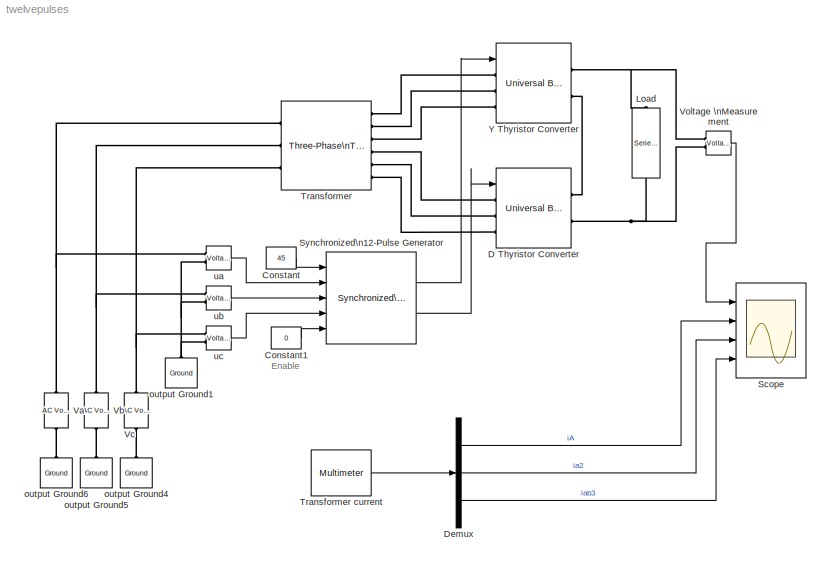
MODEL twelvepulses
KIND model
BLOCK [Reference]  Synchronized\n12-Pulse Generator  REF=powerlib_extras/Control \nBlocks/ Synchronized\n12-Pulse Generator
  Double_Pulse = off
  Ports = [5, 2]
  ShowPortLabels = on
  SourceBlock = powerlib_extras/Control \nBlocks/ Synchronized\n12-Pulse Generator
  SourceType = Synchronized 12-pulse generator
  freq = 50
  pwidth = 20
BLOCK [Constant] Constant
  Value = 45
BLOCK [Constant] Constant1
  Value = 0
BLOCK [Reference] D Thyristor Converter  REF=powerlib/Power\nElectronics/Universal Bridge
  Arms = 3
  AttributesFormatString = \\n
  Device = Thyristors
  ForwardVoltage = 0
  ForwardVoltages = [  0.8  0.8  ]
  GTOparameters = [ 10e-6 , 20e-6 ]
  IGBTparameters = [ 1e-6 , 2e-6 ]
  Lon = 0
  Measurements = None
  Ports = [1, 0, 0, 0, 0, 3, 2]
  Ron = 1e-3
  ShowPortLabels = on
  SnubberCapacitance = inf
  SnubberResistance = 2000
  SourceBlock = powerlib/Power\nElectronics/Universal Bridge
  SourceType = Universal Bridge
BLOCK [Demux] Demux
  Outputs = 3
  Ports = [1, 3]
BLOCK [Reference] Load  REF=powerlib/Elements/Series RLC Branch
  Capacitance = inf
  Inductance = 0.1
  LConnTagsString = __new0
  LeftPortType = p1
  Measurements = None
  PhysicalDomain = powersysdomain
  Ports = [0, 0, 0, 0, 0, 1, 1]
  RConnTagsString = __new0
  Resistance = 10
  RightPortType = p1
  SourceBlock = powerlib/Elements/Series RLC Branch
  SourceType = Series RLC Branch
  SubClassName = unknown
BLOCK [Scope] Scope
  DataFormat = StructureWithTime
  Decimation = 5
  NumInputPorts = 4
  Ports = [4]
  SampleInput = on
  SampleTime = 1e-4
  TimeRange = 0.05
  YMax = 400~60~60~60
  YMin = -400~-60~-60~-60
BLOCK [Reference] Transformer  REF=powerlib/Elements/Three-Phase\nTransformer\n(Three Windings)
  AttributesFormatString = \\n
  DataFile = 'basic_model'
  Hysteresis = off
  InitialFluxes = [0.8 -0.8 0.7]
  Lm = 500
  Measurements = Winding currents
  NominalPower = [ 1200e6 , 50 ]
  Ports = [0, 0, 0, 0, 0, 3, 6]
  Rm = 500
  Saturation = [0 0; 1 1.2; 2 1.1]
  SetInitialFlux = off
  SetSaturation = off
  ShowPortLabels = on
  SourceBlock = powerlib/Elements/Three-Phase\nTransformer\n(Three Windings)
  SourceType = Three-Phase Transformer (Three Windings)
  TransfoNumber = 0
  Winding1 = [ 200e3 0  0 ]
  Winding1Connection = Yg
  Winding2 = [ 200e3 0 0]
  Winding2Connection = Y
  Winding3 = [ 200e3 0.001 0]
  Winding3Connection = Delta (D1)
BLOCK [Reference] Transformer current   REF=powerlib/Measurements/Multimeter
  AttributesFormatString = \\n
  AxesSetting = [0,0.1,-100,100]
  Display = 0
  Gain = [1 -1 -1]
  L = 9
  OutputType = Magnitude
  PSBOutputType = 1
  PSBequivalent = 0
  PhasorSimulation = off
  Ports = [0, 1]
  SavedBlockNames = -11
  ShowPortLabels = on
  SourceBlock = powerlib/Measurements/Multimeter
  SourceType = MultimeterPSB
  Tag = PoWeRsYsTeMmEaSuReMeNt
  sel = [1 4 7]
  yselected = {'Iag_w1: Transformer','Ian_w2: Transformer','Iab_w3: Transformer'};
BLOCK [Reference] Va  REF=powerlib/Electrical\nSources/AC Voltage Source
  Amplitude = 100
  AttributesFormatString = \\n
  Description = source block
  Frequency = 50
  Measurements = None
  Phase = 0
  Ports = [0, 0, 0, 0, 0, 1, 1]
  SampleTime = 0
  ShowPortLabels = on
  SourceBlock = powerlib/Electrical\nSources/AC Voltage Source
  SourceType = AC Voltage Source
BLOCK [Reference] Vb  REF=powerlib/Electrical\nSources/AC Voltage Source
  Amplitude = 100
  AttributesFormatString = \\n
  Description = source block
  Frequency = 50
  Measurements = None
  Phase = -120
  Ports = [0, 0, 0, 0, 0, 1, 1]
  SampleTime = 0
  ShowPortLabels = on
  SourceBlock = powerlib/Electrical\nSources/AC Voltage Source
  SourceType = AC Voltage Source
BLOCK [Reference] Vc  REF=powerlib/Electrical\nSources/AC Voltage Source
  Amplitude = 100
  AttributesFormatString = \\n
  Description = source block
  Frequency = 50
  Measurements = None
  Phase = 120
  Ports = [0, 0, 0, 0, 0, 1, 1]
  SampleTime = 0
  ShowPortLabels = on
  SourceBlock = powerlib/Electrical\nSources/AC Voltage Source
  SourceType = AC Voltage Source
BLOCK [Reference] Voltage \nMeasurement  REF=powerlib/Measurements/Voltage Measurement
  OutputType = Complex
  PSBequivalent = 0
  PhasorSimulation = off
  Ports = [0, 1, 0, 0, 0, 2]
  ShowPortLabels = on
  SourceBlock = powerlib/Measurements/Voltage Measurement
  SourceType = Voltage Measurement
BLOCK [Reference] Y Thyristor Converter  REF=powerlib/Power\nElectronics/Universal Bridge
  Arms = 3
  AttributesFormatString = \\n
  Device = Thyristors
  ForwardVoltage = 0
  ForwardVoltages = [  0.8  0.8  ]
  GTOparameters = [ 10e-6 , 20e-6 ]
  IGBTparameters = [ 1e-6 , 2e-6 ]
  Lon = 0
  Measurements = None
  Ports = [1, 0, 0, 0, 0, 3, 2]
  Ron = 1e-3
  ShowPortLabels = on
  SnubberCapacitance = .1e-6
  SnubberResistance = 2000
  SourceBlock = powerlib/Power\nElectronics/Universal Bridge
  SourceType = Universal Bridge
BLOCK [Reference] output Ground1  REF=powerlib/Elements/Ground
  AttributesFormatString = \\n
  LConnTagsString = a
  LeftPortType = p1
  PhysicalDomain = powersysdomain
  Ports = [0, 0, 0, 0, 0, 1]
  RightPortType = p1
  SourceBlock = powerlib/Elements/Ground
  SourceType = Ground
  SubClassName = unknown
BLOCK [Reference] output Ground4  REF=powerlib/Elements/Ground
  AttributesFormatString = \\n
  LConnTagsString = a
  LeftPortType = p1
  PhysicalDomain = powersysdomain
  Ports = [0, 0, 0, 0, 0, 1]
  RightPortType = p1
  SourceBlock = powerlib/Elements/Ground
  SourceType = Ground
  SubClassName = unknown
BLOCK [Reference] output Ground5  REF=powerlib/Elements/Ground
  AttributesFormatString = \\n
  LConnTagsString = a
  LeftPortType = p1
  PhysicalDomain = powersysdomain
  Ports = [0, 0, 0, 0, 0, 1]
  RightPortType = p1
  SourceBlock = powerlib/Elements/Ground
  SourceType = Ground
  SubClassName = unknown
BLOCK [Reference] output Ground6  REF=powerlib/Elements/Ground
  AttributesFormatString = \\n
  LConnTagsString = a
  LeftPortType = p1
  PhysicalDomain = powersysdomain
  Ports = [0, 0, 0, 0, 0, 1]
  RightPortType = p1
  SourceBlock = powerlib/Elements/Ground
  SourceType = Ground
  SubClassName = unknown
BLOCK [Reference] ua  REF=powerlib/Measurements/Voltage Measurement
  AttributesFormatString = \\n
  OutputType = Magnitude
  PSBequivalent = 0
  PhasorSimulation = off
  Ports = [0, 1, 0, 0, 0, 2]
  ShowPortLabels = on
  SourceBlock = powerlib/Measurements/Voltage Measurement
  SourceType = Voltage Measurement
  Tag = PoWeRsYsTeMmEaSuReMeNt
BLOCK [Reference] ub  REF=powerlib/Measurements/Voltage Measurement
  AttributesFormatString = \\n
  OutputType = Magnitude
  PSBequivalent = 0
  PhasorSimulation = off
  Ports = [0, 1, 0, 0, 0, 2]
  ShowPortLabels = on
  SourceBlock = powerlib/Measurements/Voltage Measurement
  SourceType = Voltage Measurement
  Tag = PoWeRsYsTeMmEaSuReMeNt
BLOCK [Reference] uc  REF=powerlib/Measurements/Voltage Measurement
  AttributesFormatString = \\n
  OutputType = Magnitude
  PSBequivalent = 0
  PhasorSimulation = off
  Ports = [0, 1, 0, 0, 0, 2]
  ShowPortLabels = on
  SourceBlock = powerlib/Measurements/Voltage Measurement
  SourceType = Voltage Measurement
  Tag = PoWeRsYsTeMmEaSuReMeNt
ANNOTATION (root): Enable
LINE  Synchronized\n12-Pulse Generator:1 -> Y Thyristor Converter:1
LINE  Synchronized\n12-Pulse Generator:2 -> D Thyristor Converter:1
LINE Constant1:1 ->  Synchronized\n12-Pulse Generator:5
LINE Constant:1 ->  Synchronized\n12-Pulse Generator:1
LINE Demux:1 -> Scope:2
LINE Demux:2 -> Scope:3
LINE Demux:3 -> Scope:4
LINE Transformer current :1 -> Demux:1
LINE Voltage \nMeasurement:1 -> Scope:1
LINE ua:1 ->  Synchronized\n12-Pulse Generator:2
LINE ub:1 ->  Synchronized\n12-Pulse Generator:3
LINE uc:1 ->  Synchronized\n12-Pulse Generator:4
PLINE D Thyristor Converter:LConn1 -- Transformer:RConn4
PLINE D Thyristor Converter:LConn2 -- Transformer:RConn5
PLINE D Thyristor Converter:LConn3 -- Transformer:RConn6
PLINE D Thyristor Converter:RConn1 -- Y Thyristor Converter:RConn2
PNET net1: D Thyristor Converter:RConn2 -- Load:RConn1 -- Voltage \nMeasurement:LConn2
PNET net2: Load:LConn1 -- Voltage \nMeasurement:LConn1 -- Y Thyristor Converter:RConn1
PNET net3: Transformer:LConn1 -- Va:RConn1 -- ua:LConn1
PNET net4: Transformer:LConn2 -- Vb:RConn1 -- ub:LConn1
PNET net5: Transformer:LConn3 -- Vc:RConn1 -- uc:LConn1
PLINE Transformer:RConn1 -- Y Thyristor Converter:LConn1
PLINE Transformer:RConn2 -- Y Thyristor Converter:LConn2
PLINE Transformer:RConn3 -- Y Thyristor Converter:LConn3
PLINE Va:LConn1 -- output Ground6:LConn1
PLINE Vb:LConn1 -- output Ground5:LConn1
PLINE Vc:LConn1 -- output Ground4:LConn1
PNET net6: output Ground1:LConn1 -- ua:LConn2 -- ub:LConn2 -- uc:LConn2
note: PNET lines group multi-terminal physical nets as a canonical sorted terminal list (undirected conserving connections); 2-terminal nets keep the pairwise PLINE form
